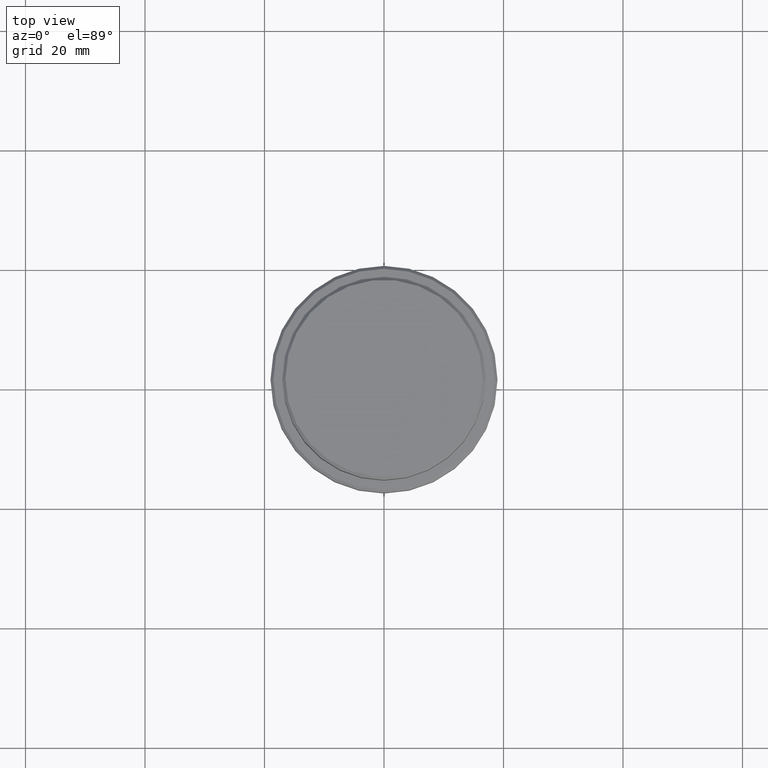
[diagram: clean part render]
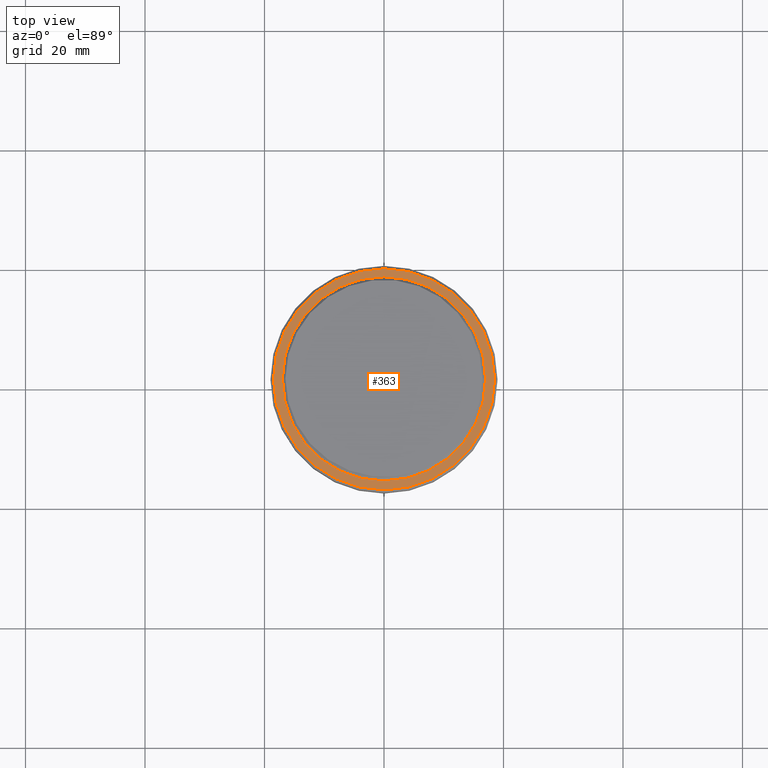
[diagram: same view with one face highlighted and labeled with its STEP entity id]
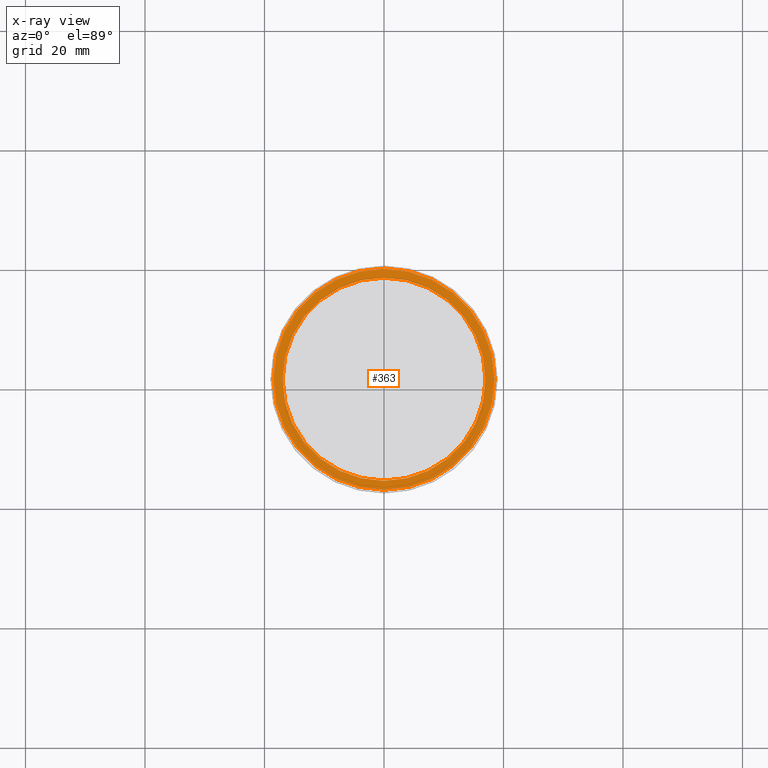
[diagram: x-ray of the same camera — body ghosted, the highlighted face saturated]
A machine part, top view. The second image highlights one B-rep face of the part: STEP entity #363.
The next image is the same camera in x-ray: the body ghosted, the highlighted face saturated — about 0% of this face is hidden behind the body in this view.
In plain terms, the highlighted planar face has unit normal (0, -0, 1).
Its self-contained STEP definition (entity closure, byte-faithful):
#69 = AXIS2_PLACEMENT_3D ( 'NONE', #301, #747, #1077 ) ;
#86 = DIRECTION ( 'NONE',  ( -0.000000000000000000, -0.000000000000000000, 1.000000000000000000 ) ) ;
#122 = VERTEX_POINT ( 'NONE', #1360 ) ;
#148 = DIRECTION ( 'NONE',  ( 1.000000000000000000, 0.000000000000000000, 0.000000000000000000 ) ) ;
#151 = CARTESIAN_POINT ( 'NONE',  ( 16.99999999999998579, 0.000000000000000000, -10.00000000000000178 ) ) ;
#161 = DIRECTION ( 'NONE',  ( -0.000000000000000000, -0.000000000000000000, 1.000000000000000000 ) ) ;
#179 = CIRCLE ( 'NONE', #422, 16.99999999999998579 ) ;
#267 = DIRECTION ( 'NONE',  ( 1.000000000000000000, 0.000000000000000000, 0.000000000000000000 ) ) ;
#301 = CARTESIAN_POINT ( 'NONE',  ( 0.000000000000000000, 16.49999999999998579, -10.00000000000000178 ) ) ;
#323 = FACE_OUTER_BOUND ( 'NONE', #546, .T. ) ;
#355 = VERTEX_POINT ( 'NONE', #1189 ) ;
#363 = ADVANCED_FACE ( 'NONE', ( #323, #1082 ), #435, .T. ) ;
#377 = DIRECTION ( 'NONE',  ( 0.000000000000000000, 0.000000000000000000, -1.000000000000000000 ) ) ;
#401 = AXIS2_PLACEMENT_3D ( 'NONE', #1171, #86, #825 ) ;
#422 = AXIS2_PLACEMENT_3D ( 'NONE', #558, #474, #1358 ) ;
#435 = PLANE ( 'NONE',  #69 ) ;
#474 = DIRECTION ( 'NONE',  ( 0.000000000000000000, 0.000000000000000000, -1.000000000000000000 ) ) ;
#497 = CIRCLE ( 'NONE', #401, 18.50000000000001776 ) ;
#546 = EDGE_LOOP ( 'NONE', ( #790, #739 ) ) ;
#558 = CARTESIAN_POINT ( 'NONE',  ( 0.000000000000000000, 0.000000000000000000, -10.00000000000000178 ) ) ;
#593 = ORIENTED_EDGE ( 'NONE', *, *, #1085, .T. ) ;
#735 = VERTEX_POINT ( 'NONE', #151 ) ;
#739 = ORIENTED_EDGE ( 'NONE', *, *, #1298, .T. ) ;
#747 = DIRECTION ( 'NONE',  ( 0.000000000000000000, -0.000000000000000000, 1.000000000000000000 ) ) ;
#776 = EDGE_LOOP ( 'NONE', ( #593, #816 ) ) ;
#790 = ORIENTED_EDGE ( 'NONE', *, *, #807, .T. ) ;
#793 = EDGE_CURVE ( 'NONE', #122, #735, #1205, .T. ) ;
#807 = EDGE_CURVE ( 'NONE', #355, #1416, #1307, .T. ) ;
#816 = ORIENTED_EDGE ( 'NONE', *, *, #793, .T. ) ;
#825 = DIRECTION ( 'NONE',  ( 1.000000000000000000, 0.000000000000000000, 0.000000000000000000 ) ) ;
#1021 = CARTESIAN_POINT ( 'NONE',  ( 0.000000000000000000, 0.000000000000000000, -10.00000000000000178 ) ) ;
#1077 = DIRECTION ( 'NONE',  ( 1.000000000000000000, 0.000000000000000000, 0.000000000000000000 ) ) ;
#1082 = FACE_BOUND ( 'NONE', #776, .T. ) ;
#1085 = EDGE_CURVE ( 'NONE', #735, #122, #179, .T. ) ;
#1144 = CARTESIAN_POINT ( 'NONE',  ( 18.50000000000001776, 2.296212748401287578E-15, -10.00000000000000178 ) ) ;
#1171 = CARTESIAN_POINT ( 'NONE',  ( 0.000000000000000000, 0.000000000000000000, -10.00000000000000178 ) ) ;
#1189 = CARTESIAN_POINT ( 'NONE',  ( -18.50000000000001776, 0.000000000000000000, -10.00000000000000178 ) ) ;
#1205 = CIRCLE ( 'NONE', #1289, 16.99999999999998579 ) ;
#1289 = AXIS2_PLACEMENT_3D ( 'NONE', #1021, #377, #148 ) ;
#1298 = EDGE_CURVE ( 'NONE', #1416, #355, #497, .T. ) ;
#1307 = CIRCLE ( 'NONE', #1331, 18.50000000000001776 ) ;
#1331 = AXIS2_PLACEMENT_3D ( 'NONE', #1365, #161, #267 ) ;
#1358 = DIRECTION ( 'NONE',  ( 1.000000000000000000, 0.000000000000000000, 0.000000000000000000 ) ) ;
#1360 = CARTESIAN_POINT ( 'NONE',  ( -16.99999999999998579, 2.081899558550499096E-15, -10.00000000000000178 ) ) ;
#1365 = CARTESIAN_POINT ( 'NONE',  ( 0.000000000000000000, 0.000000000000000000, -10.00000000000000178 ) ) ;
#1416 = VERTEX_POINT ( 'NONE', #1144 ) ;